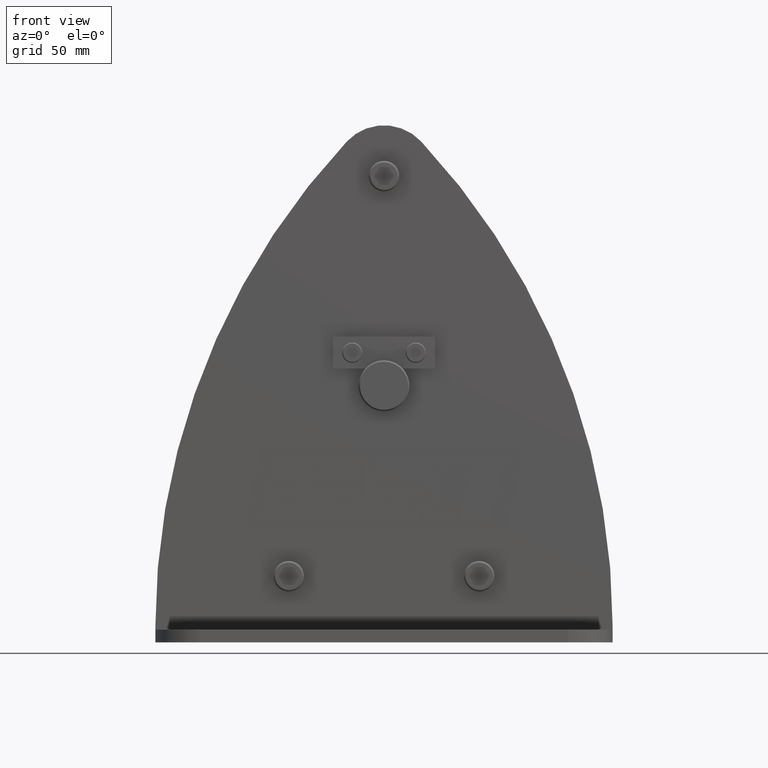
[diagram: clean part render]
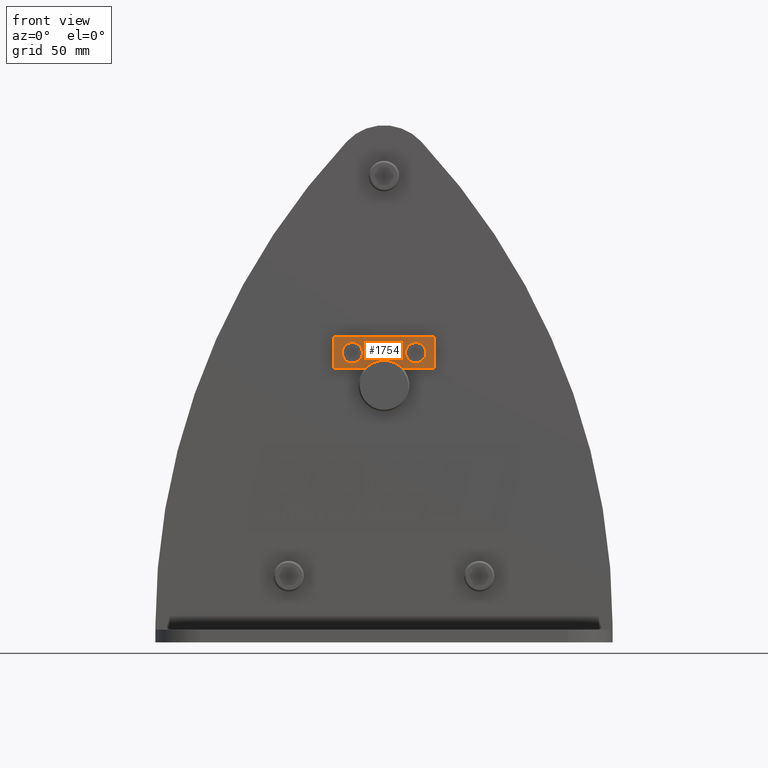
[diagram: same view with one face highlighted and labeled with its STEP entity id]
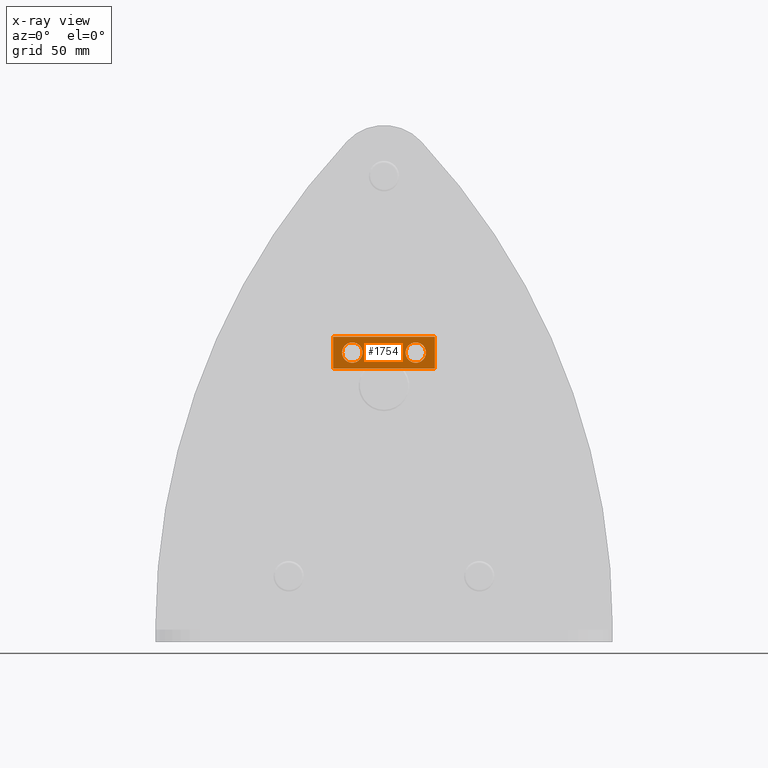
[diagram: x-ray of the same camera — body ghosted, the highlighted face saturated]
A machine part, front view. The second image highlights one B-rep face of the part: STEP entity #1754.
The next image is the same camera in x-ray: the body ghosted, the highlighted face saturated — about 0% of this face is hidden behind the body in this view.
In plain terms, the highlighted planar face has unit normal (-0, 1, 0).
Its self-contained STEP definition (entity closure, byte-faithful):
#1754=ADVANCED_FACE('',(#3696,#3697,#3698),#3699,.F.);
#3696=FACE_BOUND('',#5768,.T.);
#3697=FACE_BOUND('',#5769,.T.);
#3698=FACE_OUTER_BOUND('',#5770,.T.);
#3699=PLANE('',#5771);
#5768=EDGE_LOOP('',(#11372,#11373));
#5769=EDGE_LOOP('',(#11374,#11375));
#5770=EDGE_LOOP('',(#11376,#11377,#11378,#11379));
#5771=AXIS2_PLACEMENT_3D('',#11380,#11381,#11382);
#11372=ORIENTED_EDGE('',*,*,#12438,.T.);
#11373=ORIENTED_EDGE('',*,*,#14424,.T.);
#11374=ORIENTED_EDGE('',*,*,#12857,.T.);
#11375=ORIENTED_EDGE('',*,*,#14032,.T.);
#11376=ORIENTED_EDGE('',*,*,#14413,.T.);
#11377=ORIENTED_EDGE('',*,*,#14422,.T.);
#11378=ORIENTED_EDGE('',*,*,#14419,.T.);
#11379=ORIENTED_EDGE('',*,*,#14416,.T.);
#11380=CARTESIAN_POINT('',(0.0,-36.5,26.0));
#11381=DIRECTION('',(-0.0,1.0,0.0));
#11382=DIRECTION('',(1.0,0.0,0.0));
#12438=EDGE_CURVE('',#14960,#14962,#14964,.T.);
#12857=EDGE_CURVE('',#15659,#15663,#15665,.T.);
#14032=EDGE_CURVE('',#15663,#15659,#17415,.T.);
#14413=EDGE_CURVE('',#17901,#17899,#17902,.T.);
#14416=EDGE_CURVE('',#17905,#17901,#17906,.T.);
#14419=EDGE_CURVE('',#17909,#17905,#17910,.T.);
#14422=EDGE_CURVE('',#17899,#17909,#17913,.T.);
#14424=EDGE_CURVE('',#14962,#14960,#17915,.T.);
#14960=VERTEX_POINT('',#20101);
#14962=VERTEX_POINT('',#20104);
#14964=CIRCLE('',#20107,8.0);
#15659=VERTEX_POINT('',#23173);
#15663=VERTEX_POINT('',#23178);
#15665=CIRCLE('',#23181,8.0);
#17415=CIRCLE('',#25566,8.0);
#17899=VERTEX_POINT('',#27495);
#17901=VERTEX_POINT('',#27498);
#17902=LINE('',#27499,#27500);
#17905=VERTEX_POINT('',#27504);
#17906=LINE('',#27505,#27506);
#17909=VERTEX_POINT('',#27510);
#17910=LINE('',#27511,#27512);
#17913=LINE('',#27516,#27517);
#17915=CIRCLE('',#27519,8.0);
#20101=CARTESIAN_POINT('',(-17.0,-36.5,26.0));
#20104=CARTESIAN_POINT('',(-33.0,-36.5,26.0));
#20107=AXIS2_PLACEMENT_3D('',#28289,#28290,#28291);
#23173=CARTESIAN_POINT('',(33.0,-36.5,26.0));
#23178=CARTESIAN_POINT('',(17.0,-36.5,26.0));
#23181=AXIS2_PLACEMENT_3D('',#28889,#28890,#28891);
#25566=AXIS2_PLACEMENT_3D('',#30211,#30212,#30213);
#27495=CARTESIAN_POINT('',(40.0,-36.5,38.5));
#27498=CARTESIAN_POINT('',(40.0,-36.5,13.5));
#27499=CARTESIAN_POINT('',(40.0,-36.5,26.0));
#27500=VECTOR('',#30595,1.0);
#27504=CARTESIAN_POINT('',(-40.0,-36.5,13.5));
#27505=CARTESIAN_POINT('',(0.0,-36.5,13.5));
#27506=VECTOR('',#30597,1.0);
#27510=CARTESIAN_POINT('',(-40.0,-36.5,38.5));
#27511=CARTESIAN_POINT('',(-40.0,-36.5,26.0));
#27512=VECTOR('',#30599,1.0);
#27516=CARTESIAN_POINT('',(0.0,-36.5,38.5));
#27517=VECTOR('',#30601,1.0);
#27519=AXIS2_PLACEMENT_3D('',#30602,#30603,#30604);
#28289=CARTESIAN_POINT('',(-25.0,-36.5,26.0));
#28290=DIRECTION('',(-0.0,1.0,0.0));
#28291=DIRECTION('',(1.0,0.0,0.0));
#28889=CARTESIAN_POINT('',(25.0,-36.5,26.0));
#28890=DIRECTION('',(-0.0,1.0,0.0));
#28891=DIRECTION('',(1.0,0.0,0.0));
#30211=CARTESIAN_POINT('',(25.0,-36.5,26.0));
#30212=DIRECTION('',(-0.0,1.0,0.0));
#30213=DIRECTION('',(1.0,0.0,0.0));
#30595=DIRECTION('',(0.0,0.0,1.0));
#30597=DIRECTION('',(1.0,0.0,0.0));
#30599=DIRECTION('',(0.0,0.0,-1.0));
#30601=DIRECTION('',(-1.0,0.0,0.0));
#30602=CARTESIAN_POINT('',(-25.0,-36.5,26.0));
#30603=DIRECTION('',(-0.0,1.0,0.0));
#30604=DIRECTION('',(1.0,0.0,0.0));